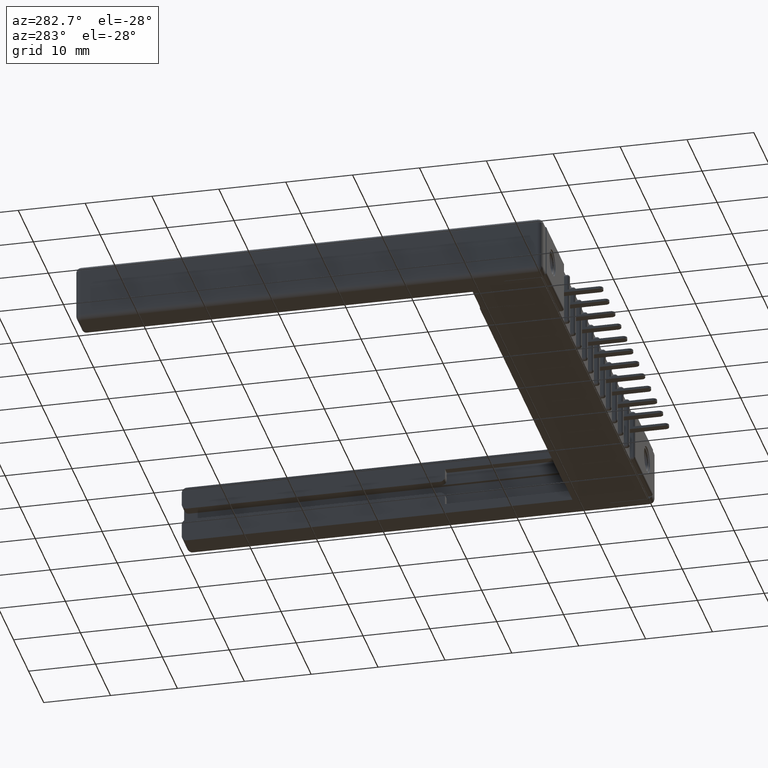
[diagram: clean part render]
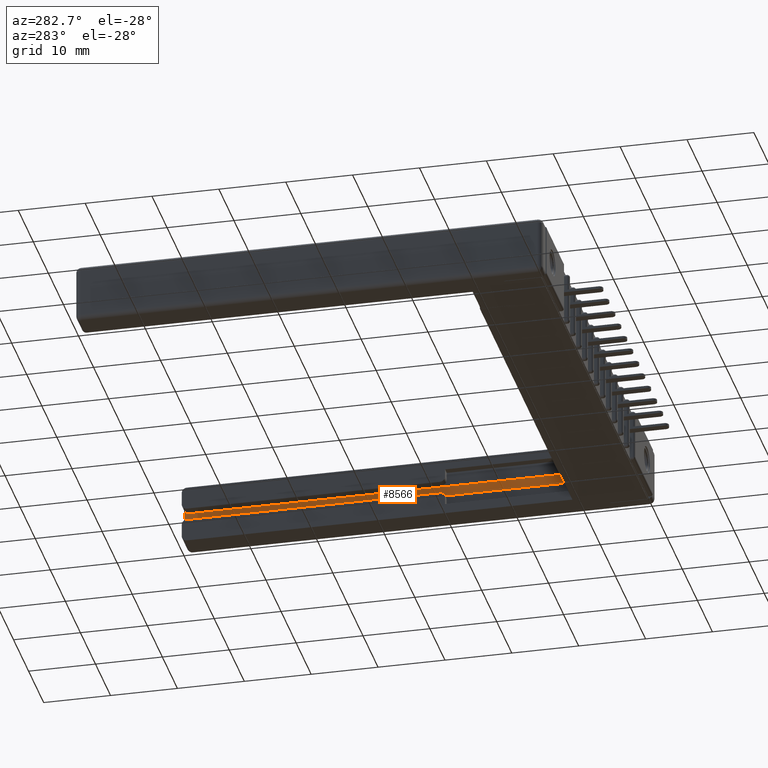
[diagram: same view with one face highlighted and labeled with its STEP entity id]
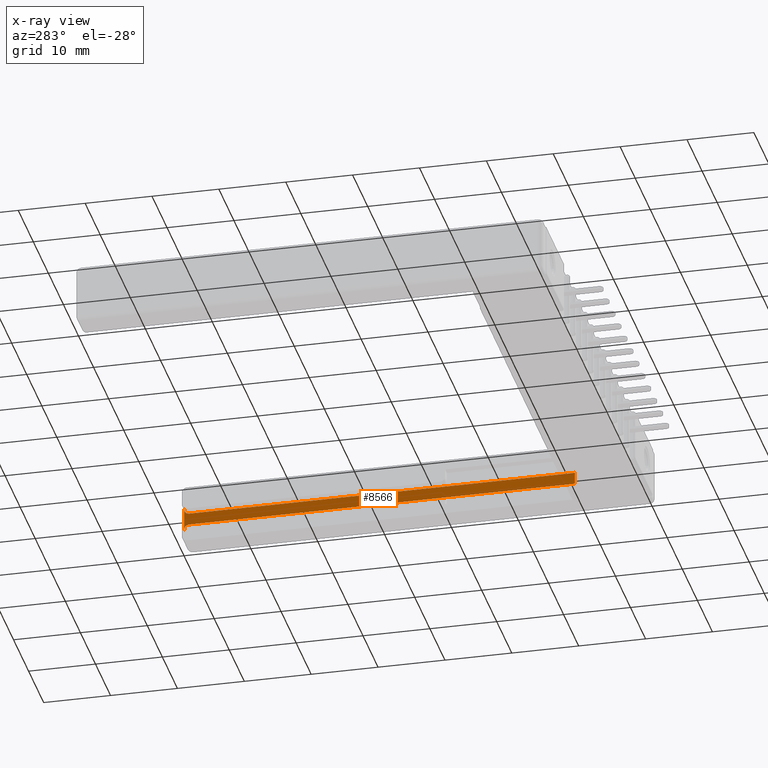
[diagram: x-ray of the same camera — body ghosted, the highlighted face saturated]
A machine part, auxiliary view. The second image highlights one B-rep face of the part: STEP entity #8566.
The next image is the same camera in x-ray: the body ghosted, the highlighted face saturated — about 1% of this face is hidden behind the body in this view.
In plain terms, the highlighted planar face has unit normal (1, 0, 0).
Its self-contained STEP definition (entity closure, byte-faithful):
#40 = LINE ( 'NONE', #5447, #16548 ) ;
#458 = CARTESIAN_POINT ( 'NONE',  ( 0.1089999999999999719, 0.4500000000000001221, -0.2070000000000000728 ) ) ;
#1016 = CIRCLE ( 'NONE', #15672, 0.02999999999999995379 ) ;
#1217 = DIRECTION ( 'NONE',  ( -1.000000000000000000, -1.187759997245332081E-16, 0.0000000000000000000 ) ) ;
#1628 = DIRECTION ( 'NONE',  ( -0.0000000000000000000, -0.0000000000000000000, 1.000000000000000000 ) ) ;
#2075 = DIRECTION ( 'NONE',  ( 0.0000000000000000000, 0.0000000000000000000, -1.000000000000000000 ) ) ;
#2711 = DIRECTION ( 'NONE',  ( 0.0000000000000000000, -1.000000000000000000, 0.0000000000000000000 ) ) ;
#3167 = VERTEX_POINT ( 'NONE', #10546 ) ;
#3543 = EDGE_CURVE ( 'NONE', #5100, #9180, #40, .T. ) ;
#3773 = CARTESIAN_POINT ( 'NONE',  ( 0.1089999999999996944, 2.719999999999999307, -0.2070000000000001839 ) ) ;
#3808 = DIRECTION ( 'NONE',  ( -1.000000000000000000, -1.187759997245332081E-16, -0.0000000000000000000 ) ) ;
#4420 = ORIENTED_EDGE ( 'NONE', *, *, #9538, .T. ) ;
#4927 = DIRECTION ( 'NONE',  ( -1.000000000000000000, -1.187759997245332081E-16, -0.0000000000000000000 ) ) ;
#5013 = EDGE_CURVE ( 'NONE', #3167, #12856, #14980, .T. ) ;
#5100 = VERTEX_POINT ( 'NONE', #458 ) ;
#5364 = DIRECTION ( 'NONE',  ( 1.187759997245332081E-16, -1.000000000000000000, 0.0000000000000000000 ) ) ;
#5447 = CARTESIAN_POINT ( 'NONE',  ( 0.1089999999999999719, 0.4500000000000001221, -0.2070000000000000728 ) ) ;
#5453 = VECTOR ( 'NONE', #1628, 39.37007874015748143 ) ;
#5512 = CARTESIAN_POINT ( 'NONE',  ( 0.1089999999999996944, 2.719999999999999751, -0.2370000000000001550 ) ) ;
#6012 = VECTOR ( 'NONE', #2075, 39.37007874015748143 ) ;
#6099 = LINE ( 'NONE', #11614, #8124 ) ;
#6223 = CARTESIAN_POINT ( 'NONE',  ( 0.1089999999999999719, 0.4500000000000001221, -0.1360000000000000930 ) ) ;
#6533 = EDGE_CURVE ( 'NONE', #7554, #5100, #9211, .T. ) ;
#6625 = PLANE ( 'NONE',  #9824 ) ;
#6711 = CIRCLE ( 'NONE', #12772, 0.02999999999999995379 ) ;
#7554 = VERTEX_POINT ( 'NONE', #13364 ) ;
#8124 = VECTOR ( 'NONE', #15488, 39.37007874015748143 ) ;
#8220 = EDGE_LOOP ( 'NONE', ( #10950, #16791, #9677, #11961, #4420, #10603 ) ) ;
#8566 = ADVANCED_FACE ( 'NONE', ( #13477 ), #6625, .F. ) ;
#9180 = VERTEX_POINT ( 'NONE', #3773 ) ;
#9211 = LINE ( 'NONE', #6223, #6012 ) ;
#9538 = EDGE_CURVE ( 'NONE', #11441, #7554, #6099, .T. ) ;
#9677 = ORIENTED_EDGE ( 'NONE', *, *, #5013, .T. ) ;
#9824 = AXIS2_PLACEMENT_3D ( 'NONE', #13571, #1217, #5364 ) ;
#10429 = DIRECTION ( 'NONE',  ( 0.0000000000000000000, -1.000000000000000000, 0.0000000000000000000 ) ) ;
#10546 = CARTESIAN_POINT ( 'NONE',  ( 0.1089999999999996944, 2.750000000000000000, -0.2370000000000001550 ) ) ;
#10603 = ORIENTED_EDGE ( 'NONE', *, *, #6533, .T. ) ;
#10837 = CARTESIAN_POINT ( 'NONE',  ( 0.1089999999999996944, 2.750000000000000000, -0.1360000000000001763 ) ) ;
#10950 = ORIENTED_EDGE ( 'NONE', *, *, #3543, .T. ) ;
#11441 = VERTEX_POINT ( 'NONE', #15095 ) ;
#11614 = CARTESIAN_POINT ( 'NONE',  ( 0.1089999999999999719, 0.4500000000000001221, -0.1360000000000000930 ) ) ;
#11961 = ORIENTED_EDGE ( 'NONE', *, *, #17332, .T. ) ;
#12406 = DIRECTION ( 'NONE',  ( -1.187759997245332081E-16, 1.000000000000000000, -4.454099989669995611E-17 ) ) ;
#12597 = CARTESIAN_POINT ( 'NONE',  ( 0.1089999999999996944, 2.750000000000000000, -0.1060000000000001635 ) ) ;
#12772 = AXIS2_PLACEMENT_3D ( 'NONE', #5512, #3808, #2711 ) ;
#12856 = VERTEX_POINT ( 'NONE', #12597 ) ;
#13364 = CARTESIAN_POINT ( 'NONE',  ( 0.1089999999999999719, 0.4500000000000001221, -0.1360000000000000930 ) ) ;
#13477 = FACE_OUTER_BOUND ( 'NONE', #8220, .T. ) ;
#13571 = CARTESIAN_POINT ( 'NONE',  ( 0.1089999999999996944, 2.750000000000000000, -0.2070000000000001839 ) ) ;
#14816 = EDGE_CURVE ( 'NONE', #9180, #3167, #6711, .T. ) ;
#14980 = LINE ( 'NONE', #10837, #5453 ) ;
#15095 = CARTESIAN_POINT ( 'NONE',  ( 0.1089999999999996944, 2.719999999999999307, -0.1360000000000001763 ) ) ;
#15488 = DIRECTION ( 'NONE',  ( 1.187759997245332081E-16, -1.000000000000000000, 3.711749991391662598E-17 ) ) ;
#15672 = AXIS2_PLACEMENT_3D ( 'NONE', #17268, #4927, #10429 ) ;
#16548 = VECTOR ( 'NONE', #12406, 39.37007874015748143 ) ;
#16791 = ORIENTED_EDGE ( 'NONE', *, *, #14816, .T. ) ;
#17268 = CARTESIAN_POINT ( 'NONE',  ( 0.1089999999999996944, 2.719999999999999751, -0.1060000000000001635 ) ) ;
#17332 = EDGE_CURVE ( 'NONE', #12856, #11441, #1016, .T. ) ;